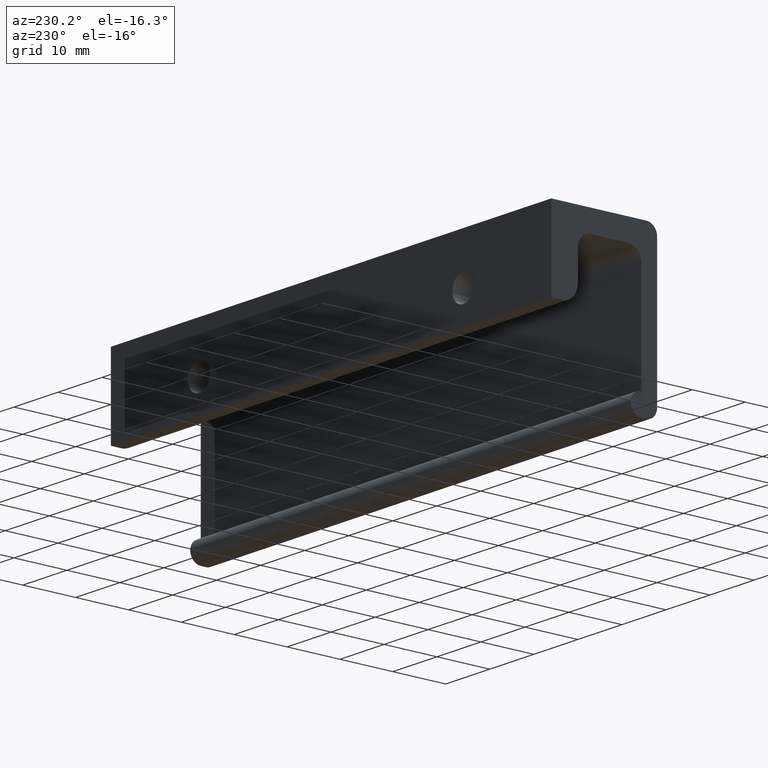
[diagram: clean part render]
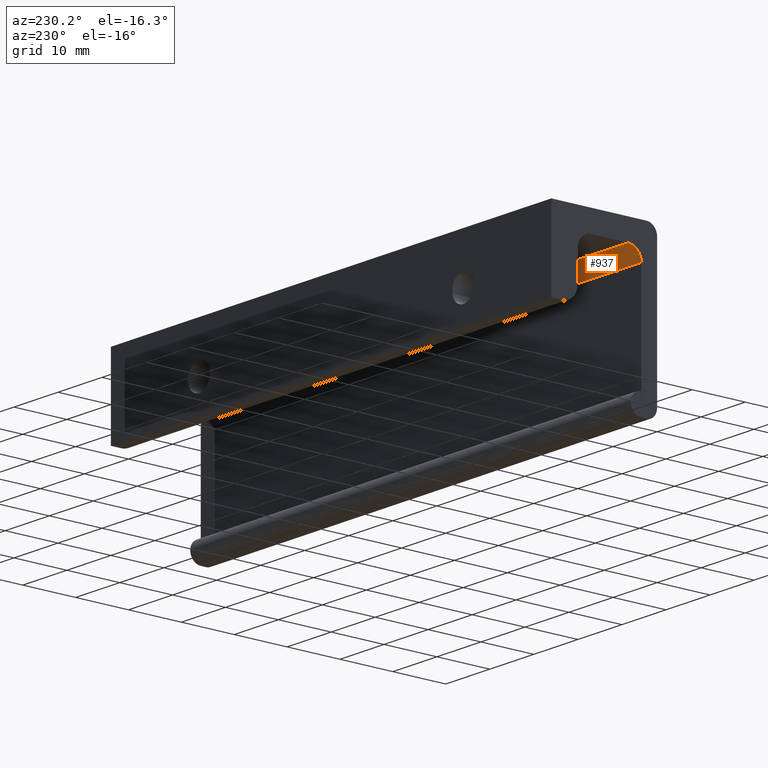
[diagram: same view with one face highlighted and labeled with its STEP entity id]
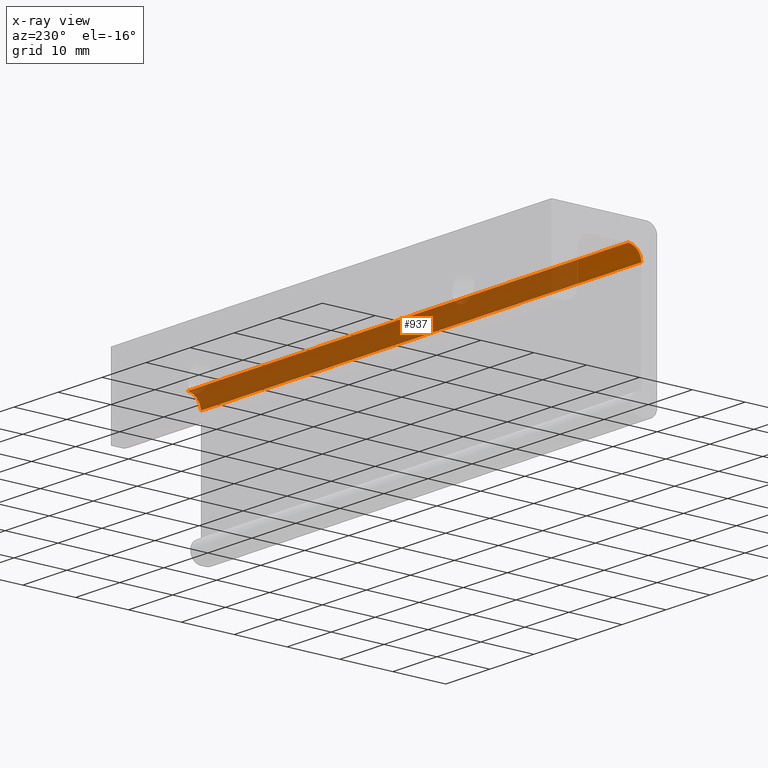
[diagram: x-ray of the same camera — body ghosted, the highlighted face saturated]
A machine part, auxiliary view. The second image highlights one B-rep face of the part: STEP entity #937.
The next image is the same camera in x-ray: the body ghosted, the highlighted face saturated — about 87% of this face is hidden behind the body in this view.
In plain terms, the highlighted face is a freeform B-spline surface patch.
Its self-contained STEP definition (entity closure, byte-faithful):
#520=CARTESIAN_POINT('',(0.0,-14.500000000000000,-4.000000000000085));
#521=VERTEX_POINT('',#520);
#527=CARTESIAN_POINT('',(0.0,-17.0,-6.500000000000000));
#528=VERTEX_POINT('',#527);
#529=CARTESIAN_POINT('',(0.0,-14.500000000000000,-4.000000000000085));
#530=CARTESIAN_POINT('',(0.0,-17.000000000000004,-4.000000000000000));
#531=CARTESIAN_POINT('',(0.0,-17.0,-6.500000000000000));
#539=(BOUNDED_CURVE()B_SPLINE_CURVE(2,(#529,#530,#531),.UNSPECIFIED.,.F.,.U.)CURVE()GEOMETRIC_REPRESENTATION_ITEM()QUASI_UNIFORM_CURVE()RATIONAL_B_SPLINE_CURVE((1.0,0.707106781186548,1.0))REPRESENTATION_ITEM(''));
#540=EDGE_CURVE('',#521,#528,#539,.T.);
#700=CARTESIAN_POINT('',(100.0,-17.0,-6.500000000000000));
#701=VERTEX_POINT('',#700);
#707=CARTESIAN_POINT('',(100.0,-14.500000000000000,-4.000000000000085));
#708=VERTEX_POINT('',#707);
#709=CARTESIAN_POINT('',(100.0,-14.500000000000000,-4.0));
#710=CARTESIAN_POINT('',(100.0,-17.000000000000004,-4.000000000000000));
#711=CARTESIAN_POINT('',(100.0,-17.0,-6.500000000000000));
#719=(BOUNDED_CURVE()B_SPLINE_CURVE(2,(#709,#710,#711),.UNSPECIFIED.,.F.,.U.)CURVE()GEOMETRIC_REPRESENTATION_ITEM()QUASI_UNIFORM_CURVE()RATIONAL_B_SPLINE_CURVE((1.0,0.707106781186548,1.0))REPRESENTATION_ITEM(''));
#720=EDGE_CURVE('',#708,#701,#719,.T.);
#903=CARTESIAN_POINT('',(100.0,-17.0,-6.500000000000000));
#904=CARTESIAN_POINT('',(0.0,-17.0,-6.500000000000000));
#905=QUASI_UNIFORM_CURVE('',1,(#903,#904),.UNSPECIFIED.,.F.,.U.);
#906=EDGE_CURVE('',#701,#528,#905,.T.);
#913=CARTESIAN_POINT('',(102.500000000000000,-14.434557629230310,-4.000856687561107));
#914=CARTESIAN_POINT('',(-2.562500000000000,-14.434557629230310,-4.000856687561107));
#915=CARTESIAN_POINT('',(102.500000000000010,-17.161893971485295,-3.929438872010022));
#916=CARTESIAN_POINT('',(-2.562500000000000,-17.161893971485295,-3.929438872010022));
#917=CARTESIAN_POINT('',(102.500000000000000,-16.995336996054672,-6.652621348837139));
#918=CARTESIAN_POINT('',(-2.562500000000000,-16.995336996054672,-6.652621348837139));
#926=(BOUNDED_SURFACE()B_SPLINE_SURFACE(1,2,((#913,#915,#917),(#914,#916,#918)),.UNSPECIFIED.,.F.,.F.,.U.)B_SPLINE_SURFACE_WITH_KNOTS((2,2),(3,3),(0.0,105.062500000000000),(0.0,4.400105308918333),.UNSPECIFIED.)GEOMETRIC_REPRESENTATION_ITEM()RATIONAL_B_SPLINE_SURFACE(((1.0,0.675590207615660,1.0),(1.0,0.675590207615660,1.0)))REPRESENTATION_ITEM('')SURFACE());
#927=ORIENTED_EDGE('',*,*,#540,.F.);
#928=CARTESIAN_POINT('',(100.0,-14.500000000000000,-4.000000000000085));
#929=CARTESIAN_POINT('',(0.0,-14.500000000000000,-4.000000000000085));
#930=QUASI_UNIFORM_CURVE('',1,(#928,#929),.UNSPECIFIED.,.F.,.U.);
#931=EDGE_CURVE('',#708,#521,#930,.T.);
#932=ORIENTED_EDGE('',*,*,#931,.F.);
#933=ORIENTED_EDGE('',*,*,#720,.T.);
#934=ORIENTED_EDGE('',*,*,#906,.T.);
#935=EDGE_LOOP('',(#927,#932,#933,#934));
#936=FACE_OUTER_BOUND('',#935,.T.);
#937=ADVANCED_FACE('',(#936),#926,.F.);